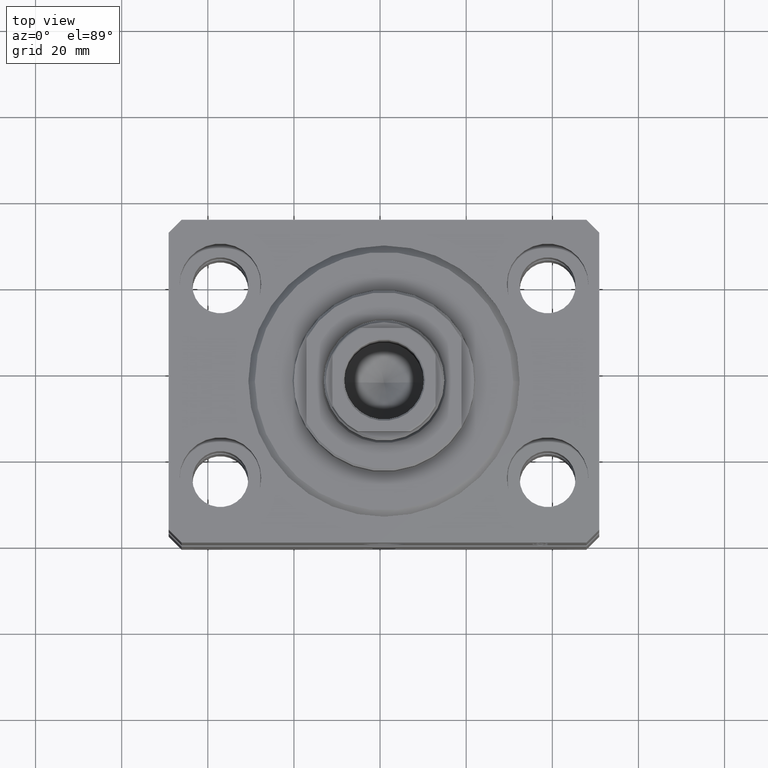
[diagram: clean part render]
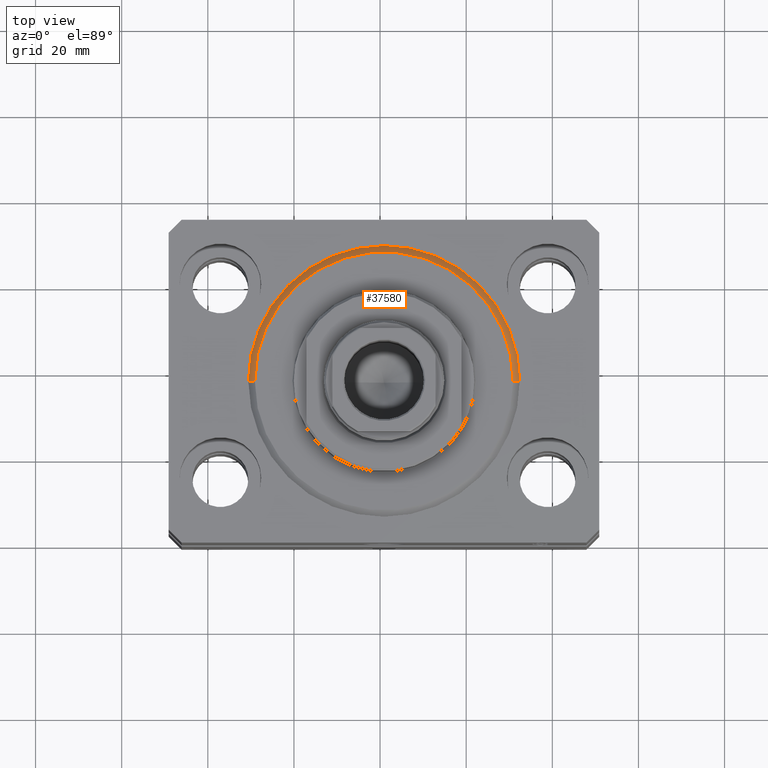
[diagram: same view with one face highlighted and labeled with its STEP entity id]
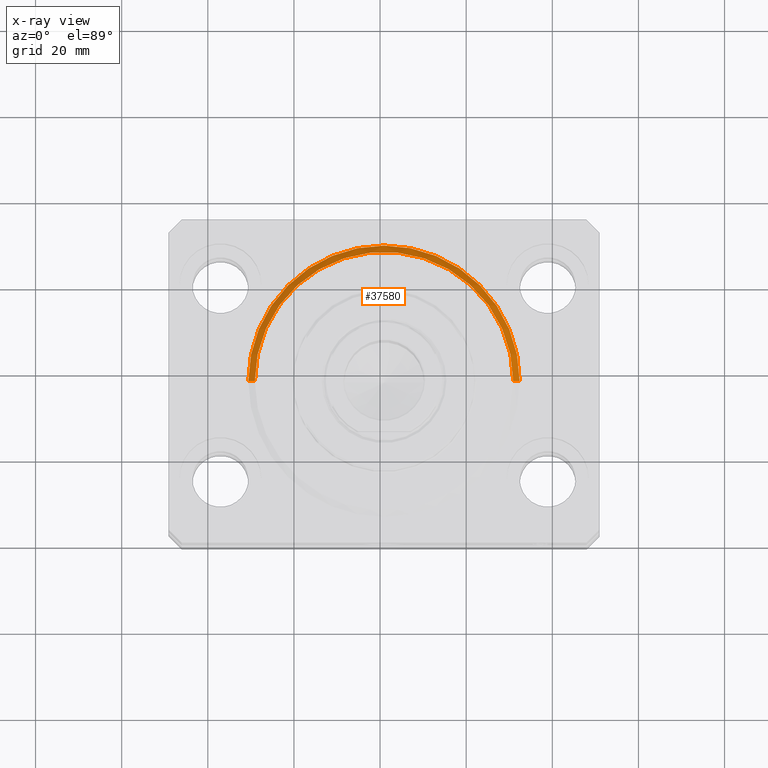
[diagram: x-ray of the same camera — body ghosted, the highlighted face saturated]
A machine part, top view. The second image highlights one B-rep face of the part: STEP entity #37580.
The next image is the same camera in x-ray: the body ghosted, the highlighted face saturated — about 0% of this face is hidden behind the body in this view.
In plain terms, the highlighted conical surface has half-angle 45 deg.
Its self-contained STEP definition (entity closure, byte-faithful):
#2774 = EDGE_LOOP ( 'NONE', ( #17214, #3554, #7459, #20818 ) ) ;
#3554 = ORIENTED_EDGE ( 'NONE', *, *, #11973, .T. ) ;
#4411 = CARTESIAN_POINT ( 'NONE',  ( -31.50000000000000000, 3.857637417314162689E-15, 1.500000000000001332 ) ) ;
#5268 = VERTEX_POINT ( 'NONE', #18495 ) ;
#7459 = ORIENTED_EDGE ( 'NONE', *, *, #38180, .F. ) ;
#7755 = CIRCLE ( 'NONE', #20050, 31.50000000000000000 ) ;
#8504 = LINE ( 'NONE', #4411, #34294 ) ;
#9079 = FACE_OUTER_BOUND ( 'NONE', #2774, .T. ) ;
#9178 = AXIS2_PLACEMENT_3D ( 'NONE', #30423, #44283, #36787 ) ;
#9638 = CARTESIAN_POINT ( 'NONE',  ( 0.000000000000000000, 0.000000000000000000, 1.500000000000001332 ) ) ;
#11973 = EDGE_CURVE ( 'NONE', #18827, #5268, #8504, .T. ) ;
#12762 = CONICAL_SURFACE ( 'NONE', #9178, 31.50000000000000000, 0.7853981633974506105 ) ;
#15301 = DIRECTION ( 'NONE',  ( -0.7071067811865491270, 8.659560562354952580E-17, 0.7071067811865459074 ) ) ;
#16135 = VERTEX_POINT ( 'NONE', #32886 ) ;
#16460 = LINE ( 'NONE', #23069, #39523 ) ;
#17097 = DIRECTION ( 'NONE',  ( 1.000000000000000000, 0.000000000000000000, 0.000000000000000000 ) ) ;
#17214 = ORIENTED_EDGE ( 'NONE', *, *, #30662, .F. ) ;
#17606 = DIRECTION ( 'NONE',  ( -0.000000000000000000, -0.000000000000000000, -1.000000000000000000 ) ) ;
#18495 = CARTESIAN_POINT ( 'NONE',  ( -31.50000000000000000, 0.000000000000000000, 1.500000000000001332 ) ) ;
#18501 = AXIS2_PLACEMENT_3D ( 'NONE', #44466, #17606, #34897 ) ;
#18827 = VERTEX_POINT ( 'NONE', #24464 ) ;
#20050 = AXIS2_PLACEMENT_3D ( 'NONE', #9638, #23933, #17097 ) ;
#20662 = CIRCLE ( 'NONE', #18501, 29.99999999999999289 ) ;
#20818 = ORIENTED_EDGE ( 'NONE', *, *, #29879, .F. ) ;
#22615 = DIRECTION ( 'NONE',  ( 0.7071067811865491270, 0.000000000000000000, 0.7071067811865459074 ) ) ;
#23069 = CARTESIAN_POINT ( 'NONE',  ( 31.50000000000000000, 0.000000000000000000, 1.500000000000001332 ) ) ;
#23933 = DIRECTION ( 'NONE',  ( -0.000000000000000000, -0.000000000000000000, 1.000000000000000000 ) ) ;
#24464 = CARTESIAN_POINT ( 'NONE',  ( -29.99999999999999289, 3.765788907378110539E-15, 0.000000000000000000 ) ) ;
#29879 = EDGE_CURVE ( 'NONE', #16135, #43647, #16460, .T. ) ;
#30423 = CARTESIAN_POINT ( 'NONE',  ( 0.000000000000000000, 0.000000000000000000, 1.500000000000001332 ) ) ;
#30662 = EDGE_CURVE ( 'NONE', #18827, #16135, #20662, .T. ) ;
#32886 = CARTESIAN_POINT ( 'NONE',  ( 29.99999999999999289, 0.000000000000000000, 0.000000000000000000 ) ) ;
#34294 = VECTOR ( 'NONE', #15301, 1000.000000000000000 ) ;
#34897 = DIRECTION ( 'NONE',  ( 1.000000000000000000, 0.000000000000000000, 0.000000000000000000 ) ) ;
#36787 = DIRECTION ( 'NONE',  ( 1.000000000000000000, 0.000000000000000000, 0.000000000000000000 ) ) ;
#36867 = CARTESIAN_POINT ( 'NONE',  ( 31.50000000000000000, 3.857637417314162689E-15, 1.500000000000001332 ) ) ;
#37580 = ADVANCED_FACE ( 'NONE', ( #9079 ), #12762, .T. ) ;
#38180 = EDGE_CURVE ( 'NONE', #43647, #5268, #7755, .T. ) ;
#39523 = VECTOR ( 'NONE', #22615, 1000.000000000000000 ) ;
#43647 = VERTEX_POINT ( 'NONE', #36867 ) ;
#44283 = DIRECTION ( 'NONE',  ( -0.000000000000000000, -0.000000000000000000, 1.000000000000000000 ) ) ;
#44466 = CARTESIAN_POINT ( 'NONE',  ( 0.000000000000000000, 0.000000000000000000, 0.000000000000000000 ) ) ;